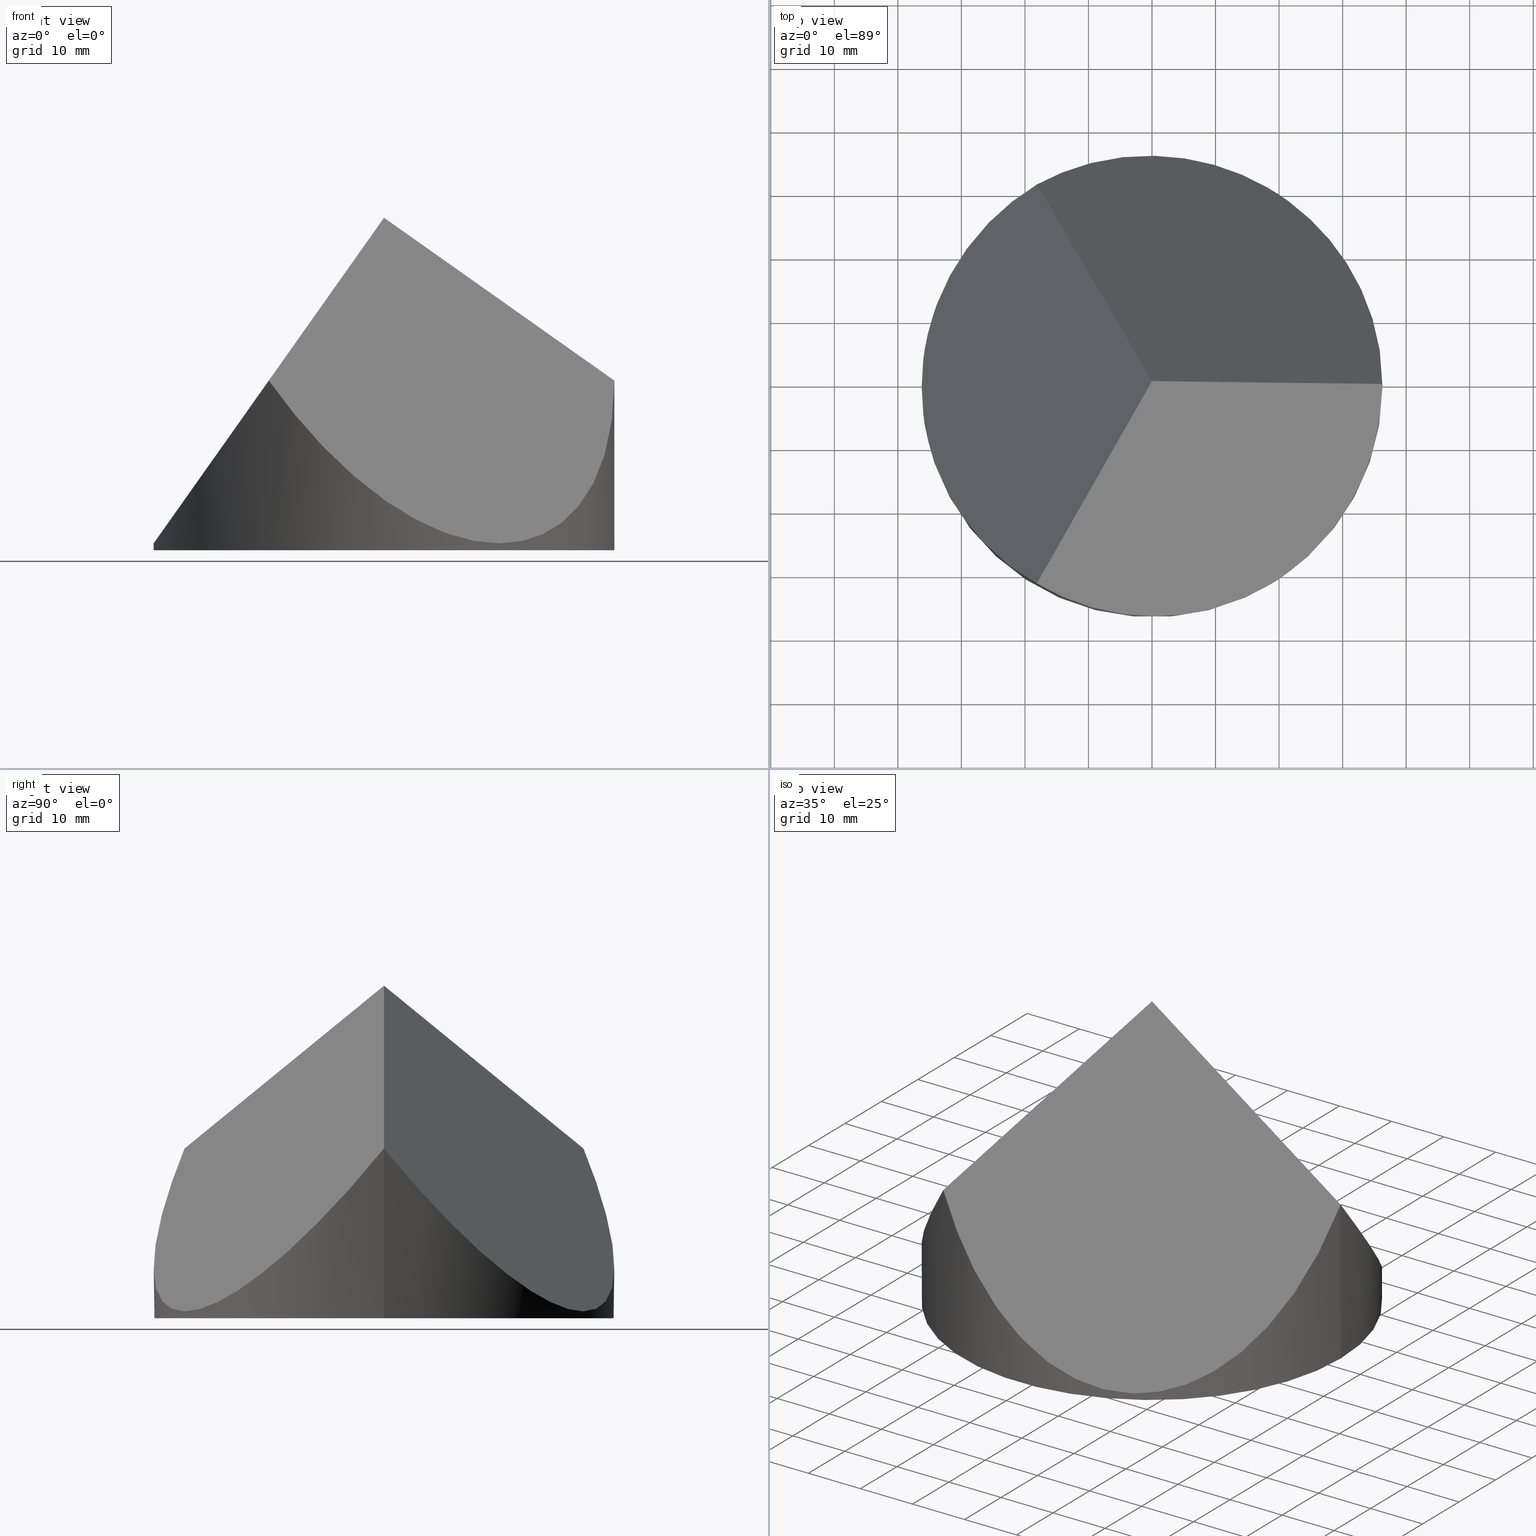
[diagram: canonical four-view strip — front | top / right | iso, engineering-drawing reading convention]
A machine part, canonical four-view strip (front | top / right | iso — engineering-drawing reading convention). The complete STEP part file that produces these views, byte-faithful:
ISO-10303-21;
HEADER;
FILE_DESCRIPTION (( 'STEP AP203' ),
    '1' );
FILE_NAME ('371510.STEP',
    '2019-07-25T02:09:57',
    ( '' ),
    ( '' ),
    'SwSTEP 2.0',
    'SolidWorks 2016',
    '' );
FILE_SCHEMA (( 'CONFIG_CONTROL_DESIGN' ));
ENDSEC;

DATA;
#1 = DIRECTION ( 'NONE',  ( 1.000000000000000000, 0.0000000000000000000, 0.0000000000000000000 ) ) ;
#2 = APPROVAL_DATE_TIME ( #173, #115 ) ;
#3 = DATE_TIME_ROLE ( 'classification_date' ) ;
#4 = APPROVAL_PERSON_ORGANIZATION ( #45, #115, #76 ) ;
#5 = VECTOR ( 'NONE', #206, 1000.000000000000100 ) ;
#6 = LOCAL_TIME ( 10, 9, 57.00000000000000000, #14 ) ;
#7 = APPROVAL_DATE_TIME ( #124, #107 ) ;
#8 = EDGE_CURVE ( 'NONE', #159, #16, #199, .T. ) ;
#9 =( BOUNDED_CURVE ( )  B_SPLINE_CURVE ( 3, ( #280, #85, #25, #210 ),
 .UNSPECIFIED., .F., .T. ) 
 B_SPLINE_CURVE_WITH_KNOTS ( ( 4, 4 ),
 ( 5.235987755982986200, 7.330382858376182800 ),
 .UNSPECIFIED. ) 
 CURVE ( )  GEOMETRIC_REPRESENTATION_ITEM ( )  RATIONAL_B_SPLINE_CURVE ( ( 1.000000000000000000, 0.6666666666666663000, 0.6666666666666663000, 1.000000000000000000 ) ) 
 REPRESENTATION_ITEM ( '' )  );
#10 = PERSON_AND_ORGANIZATION ( #226, #18 ) ;
#11 = VECTOR ( 'NONE', #13, 1000.000000000000000 ) ;
#12 = CARTESIAN_POINT ( 'NONE',  ( -29.61578955640706200, -24.75921044359292700, 10.47564734618864600 ) ) ;
#13 = DIRECTION ( 'NONE',  ( -0.0000000000000000000, -0.0000000000000000000, -1.000000000000000000 ) ) ;
#14 = COORDINATED_UNIVERSAL_TIME_OFFSET ( 8, 0, .AHEAD. ) ;
#15 = DIRECTION ( 'NONE',  ( 0.8164400437365592100, 0.0000000000000000000, -0.5774302165486712200 ) ) ;
#16 = VERTEX_POINT ( 'NONE', #83 ) ;
#17 = ADVANCED_FACE ( 'NONE', ( #175 ), #181, .F. ) ;
#18 = ORGANIZATION ( 'δָ��', 'δָ��', '' ) ;
#19 = DIRECTION ( 'NONE',  ( -0.8165531063768112200, -1.225163215160280000E-016, 0.5772703218305786900 ) ) ;
#20 = DIRECTION ( 'NONE',  ( -0.4082200218682779900, 0.7070578185427394100, -0.5774302165486712200 ) ) ;
#21 = CYLINDRICAL_SURFACE ( 'NONE', #180, 36.25000000000000000 ) ;
#22 = APPROVAL ( #98, 'δָ��' ) ;
#23 = CARTESIAN_POINT ( 'NONE',  ( 36.25000000000002100, 3.536864344184175900E-015, 26.72270276368058400 ) ) ;
#24 = EDGE_CURVE ( 'NONE', #66, #159, #298, .T. ) ;
#25 = CARTESIAN_POINT ( 'NONE',  ( 9.062499999999980500, -47.09013133077888100, -11.71824309079885400 ) ) ;
#26 = APPLICATION_PROTOCOL_DEFINITION ( 'international standard', 'config_control_design', 1994, #247 ) ;
#27 = ADVANCED_FACE ( 'NONE', ( #129 ), #136, .T. ) ;
#28 = DIRECTION ( 'NONE',  ( 0.0000000000000000000, 0.0000000000000000000, 1.000000000000000000 ) ) ;
#29 =( BOUNDED_CURVE ( )  B_SPLINE_CURVE ( 3, ( #162, #68, #72, #43 ),
 .UNSPECIFIED., .F., .T. ) 
 B_SPLINE_CURVE_WITH_KNOTS ( ( 4, 4 ),
 ( 5.235987755982986200, 7.330382858376182800 ),
 .UNSPECIFIED. ) 
 CURVE ( )  GEOMETRIC_REPRESENTATION_ITEM ( )  RATIONAL_B_SPLINE_CURVE ( ( 1.000000000000000000, 0.6666666666666663000, 0.6666666666666663000, 1.000000000000000000 ) ) 
 REPRESENTATION_ITEM ( '' )  );
#30 = EDGE_LOOP ( 'NONE', ( #279, #182, #260, #228, #295 ) ) ;
#31 = LOCAL_TIME ( 10, 9, 57.00000000000000000, #164 ) ;
#32 = APPROVAL_STATUS ( 'not_yet_approved' ) ;
#33 = CC_DESIGN_APPROVAL ( #275, ( #248 ) ) ;
#34 = CC_DESIGN_PERSON_AND_ORGANIZATION_ASSIGNMENT ( #148, #116, ( #248 ) ) ;
#35 = ORIENTED_EDGE ( 'NONE', *, *, #121, .F. ) ;
#36 = APPROVAL_PERSON_ORGANIZATION ( #197, #296, #73 ) ;
#37 = EDGE_CURVE ( 'NONE', #123, #79, #255, .T. ) ;
#38 = DIRECTION ( 'NONE',  ( -0.0000000000000000000, -0.0000000000000000000, -1.000000000000000000 ) ) ;
#39 = EDGE_LOOP ( 'NONE', ( #110, #99 ) ) ;
#40 = PERSON_AND_ORGANIZATION ( #226, #18 ) ;
#41 = COORDINATED_UNIVERSAL_TIME_OFFSET ( 8, 0, .AHEAD. ) ;
#42 = PRODUCT_RELATED_PRODUCT_CATEGORY ( 'detail', '', ( #198 ) ) ;
#43 = CARTESIAN_POINT ( 'NONE',  ( -18.12500000000005000, 31.39342088718588600, 26.72270276368042400 ) ) ;
#44 = ORIENTED_EDGE ( 'NONE', *, *, #60, .F. ) ;
#45 = PERSON_AND_ORGANIZATION ( #226, #18 ) ;
#46 = CARTESIAN_POINT ( 'NONE',  ( 53.69357503463527300, -30.99999999999985400, 52.35000000000000100 ) ) ;
#47 = CARTESIAN_POINT ( 'NONE',  ( -29.61578955640706900, 24.75921044359291300, 10.47564734618863500 ) ) ;
#48 = CC_DESIGN_PERSON_AND_ORGANIZATION_ASSIGNMENT ( #178, #268, ( #204 ) ) ;
#49 = APPROVAL_STATUS ( 'not_yet_approved' ) ;
#50 = ORIENTED_EDGE ( 'NONE', *, *, #202, .T. ) ;
#51 = DIRECTION ( 'NONE',  ( 1.000000000000000000, 0.0000000000000000000, 0.0000000000000000000 ) ) ;
#52 = APPLICATION_PROTOCOL_DEFINITION ( 'international standard', 'config_control_design', 1994, #245 ) ;
#53 = ORIENTED_EDGE ( 'NONE', *, *, #8, .F. ) ;
#54 = PRODUCT_DEFINITION_SHAPE ( 'NONE', 'NONE',  #266 ) ;
#55 = SHAPE_DEFINITION_REPRESENTATION ( #291, #262 ) ;
#56 = CC_DESIGN_PERSON_AND_ORGANIZATION_ASSIGNMENT ( #287, #163, ( #93 ) ) ;
#57 = PERSON_AND_ORGANIZATION ( #226, #18 ) ;
#58 = CC_DESIGN_APPROVAL ( #296, ( #266 ) ) ;
#59 = COORDINATED_UNIVERSAL_TIME_OFFSET ( 8, 0, .AHEAD. ) ;
#60 = EDGE_CURVE ( 'NONE', #66, #79, #250, .T. ) ;
#61 = CC_DESIGN_SECURITY_CLASSIFICATION ( #248, ( #155 ) ) ;
#62 = CARTESIAN_POINT ( 'NONE',  ( -11.40424666751465600, -19.75273465018338500, 36.22530929077493800 ) ) ;
#63 = LINE ( 'NONE', #312, #281 ) ;
#64 = CC_DESIGN_PERSON_AND_ORGANIZATION_ASSIGNMENT ( #10, #265, ( #93 ) ) ;
#65 = PLANE ( 'NONE',  #231 ) ;
#66 = VERTEX_POINT ( 'NONE', #301 ) ;
#67 = AXIS2_PLACEMENT_3D ( 'NONE', #237, #20, #112 ) ;
#68 = CARTESIAN_POINT ( 'NONE',  ( 36.25000000000000700, 31.39342088718594000, -11.71824309079878500 ) ) ;
#69 =( LENGTH_UNIT ( ) NAMED_UNIT ( * ) SI_UNIT ( .MILLI., .METRE. ) );
#70 = SECURITY_CLASSIFICATION ( '', '', #214 ) ;
#71 = CC_DESIGN_DATE_AND_TIME_ASSIGNMENT ( #156, #270, ( #111 ) ) ;
#72 = CARTESIAN_POINT ( 'NONE',  ( 9.062499999999966200, 47.09013133077888100, -11.71824309079887200 ) ) ;
#73 = APPROVAL_ROLE ( '' ) ;
#74 = APPLICATION_PROTOCOL_DEFINITION ( 'international standard', 'config_control_design', 1994, #118 ) ;
#75 = PERSON_AND_ORGANIZATION_ROLE ( 'creator' ) ;
#76 = APPROVAL_ROLE ( '' ) ;
#77 = ORIENTED_EDGE ( 'NONE', *, *, #240, .T. ) ;
#78 = EDGE_CURVE ( 'NONE', #16, #305, #80, .T. ) ;
#79 = VERTEX_POINT ( 'NONE', #82 ) ;
#80 = CIRCLE ( 'NONE', #132, 36.25000000000000000 ) ;
#81 = CC_DESIGN_PERSON_AND_ORGANIZATION_ASSIGNMENT ( #196, #137, ( #70 ) ) ;
#82 = CARTESIAN_POINT ( 'NONE',  ( -3.469446951953614200E-015, -4.420505172018915700E-015, 52.35000000000000100 ) ) ;
#83 = CARTESIAN_POINT ( 'NONE',  ( -36.25000000000000000, 0.0000000000000000000, 0.0000000000000000000 ) ) ;
#84 = APPROVAL_DATE_TIME ( #215, #22 ) ;
#85 = CARTESIAN_POINT ( 'NONE',  ( 36.25000000000001400, -31.39342088718592200, -11.71824309079876700 ) ) ;
#86 =( NAMED_UNIT ( * ) SI_UNIT ( $, .STERADIAN. ) SOLID_ANGLE_UNIT ( ) );
#87 = EDGE_CURVE ( 'NONE', #103, #123, #29, .T. ) ;
#88 =( NAMED_UNIT ( * ) PLANE_ANGLE_UNIT ( ) SI_UNIT ( $, .RADIAN. ) );
#89 = CALENDAR_DATE ( 2019, 25, 7 ) ;
#90 = PERSON_AND_ORGANIZATION_ROLE ( 'creator' ) ;
#91 = APPROVAL_STATUS ( 'not_yet_approved' ) ;
#92 = ADVANCED_FACE ( 'NONE', ( #125 ), #21, .T. ) ;
#93 = PRODUCT_DEFINITION_FORMATION_WITH_SPECIFIED_SOURCE ( '�κ�', '', #204, .NOT_KNOWN. ) ;
#94 = APPROVAL_STATUS ( 'not_yet_approved' ) ;
#95 = EDGE_LOOP ( 'NONE', ( #234, #286, #171 ) ) ;
#96 = MECHANICAL_CONTEXT ( 'NONE', #118, 'mechanical' ) ;
#97 = CALENDAR_DATE ( 2019, 25, 7 ) ;
#98 = APPROVAL_STATUS ( 'not_yet_approved' ) ;
#99 = ORIENTED_EDGE ( 'NONE', *, *, #299, .F. ) ;
#100 = CC_DESIGN_DATE_AND_TIME_ASSIGNMENT ( #168, #166, ( #70 ) ) ;
#101 = COORDINATED_UNIVERSAL_TIME_OFFSET ( 8, 0, .AHEAD. ) ;
#102 = CC_DESIGN_PERSON_AND_ORGANIZATION_ASSIGNMENT ( #104, #141, ( #155 ) ) ;
#103 = VERTEX_POINT ( 'NONE', #23 ) ;
#104 = PERSON_AND_ORGANIZATION ( #226, #18 ) ;
#105 = LOCAL_TIME ( 10, 9, 57.00000000000000000, #59 ) ;
#106 = AXIS2_PLACEMENT_3D ( 'NONE', #176, #38, #133 ) ;
#107 = APPROVAL ( #49, 'δָ��' ) ;
#108 = LOCAL_TIME ( 10, 9, 57.00000000000000000, #244 ) ;
#109 = CARTESIAN_POINT ( 'NONE',  ( -18.12500000000005000, 31.39342088718588600, 26.72270276368042400 ) ) ;
#110 = ORIENTED_EDGE ( 'NONE', *, *, #78, .F. ) ;
#111 = PRODUCT_DEFINITION ( 'δ֪', '', #155, #150 ) ;
#112 = DIRECTION ( 'NONE',  ( 0.0000000000000000000, 0.6325343505460012700, 0.7745323075116674600 ) ) ;
#113 = CALENDAR_DATE ( 2019, 25, 7 ) ;
#114 = DIRECTION ( 'NONE',  ( 0.0000000000000000000, -0.6325343505460011600, 0.7745323075116675700 ) ) ;
#115 = APPROVAL ( #91, 'δָ��' ) ;
#116 = PERSON_AND_ORGANIZATION_ROLE ( 'classification_officer' ) ;
#117 = DIRECTION ( 'NONE',  ( -0.0000000000000000000, -0.0000000000000000000, -1.000000000000000000 ) ) ;
#118 = APPLICATION_CONTEXT ( 'configuration controlled 3d designs of mechanical parts and assemblies' ) ;
#119 = CALENDAR_DATE ( 2019, 25, 7 ) ;
#120 = APPROVAL_ROLE ( '' ) ;
#121 = EDGE_CURVE ( 'NONE', #103, #66, #9, .T. ) ;
#122 = SECURITY_CLASSIFICATION_LEVEL ( 'unclassified' ) ;
#123 = VERTEX_POINT ( 'NONE', #239 ) ;
#124 = DATE_AND_TIME ( #293, #108 ) ;
#125 = FACE_OUTER_BOUND ( 'NONE', #30, .T. ) ;
#126 = LOCAL_TIME ( 10, 9, 57.00000000000000000, #101 ) ;
#127 = COORDINATED_UNIVERSAL_TIME_OFFSET ( 8, 0, .AHEAD. ) ;
#128 = CARTESIAN_POINT ( 'NONE',  ( -36.25000000000000000, 0.0000000000000000000, 52.35000000000000100 ) ) ;
#129 = FACE_OUTER_BOUND ( 'NONE', #217, .T. ) ;
#130 = PERSON_AND_ORGANIZATION ( #226, #18 ) ;
#131 = DIRECTION ( 'NONE',  ( 0.0000000000000000000, 0.0000000000000000000, 1.000000000000000000 ) ) ;
#132 = AXIS2_PLACEMENT_3D ( 'NONE', #177, #131, #154 ) ;
#133 = DIRECTION ( 'NONE',  ( -1.000000000000000000, 0.0000000000000000000, 0.0000000000000000000 ) ) ;
#134 = PERSON_AND_ORGANIZATION ( #226, #18 ) ;
#135 = DIRECTION ( 'NONE',  ( -1.000000000000000000, 0.0000000000000000000, 0.0000000000000000000 ) ) ;
#136 = CYLINDRICAL_SURFACE ( 'NONE', #106, 36.25000000000000000 ) ;
#137 = PERSON_AND_ORGANIZATION_ROLE ( 'classification_officer' ) ;
#138 = APPROVAL_PERSON_ORGANIZATION ( #203, #107, #140 ) ;
#139 = CARTESIAN_POINT ( 'NONE',  ( -36.25000000000000000, 0.0000000000000000000, 1.095405527360988800 ) ) ;
#140 = APPROVAL_ROLE ( '' ) ;
#141 = PERSON_AND_ORGANIZATION_ROLE ( 'design_supplier' ) ;
#142 = ORIENTED_EDGE ( 'NONE', *, *, #87, .F. ) ;
#143 = APPROVAL_DATE_TIME ( #230, #296 ) ;
#144 = FACE_OUTER_BOUND ( 'NONE', #39, .T. ) ;
#145 = CC_DESIGN_APPROVAL ( #115, ( #70 ) ) ;
#146 = APPROVAL_DATE_TIME ( #229, #275 ) ;
#147 = ORIENTED_EDGE ( 'NONE', *, *, #221, .T. ) ;
#148 = PERSON_AND_ORGANIZATION ( #226, #18 ) ;
#149 = CIRCLE ( 'NONE', #165, 36.25000000000000000 ) ;
#150 = DESIGN_CONTEXT ( 'detailed design', #247, 'design' ) ;
#151 = DIRECTION ( 'NONE',  ( -0.5774302165486712200, 0.0000000000000000000, -0.8164400437365592100 ) ) ;
#152 = CARTESIAN_POINT ( 'NONE',  ( 11.40424666751465900, -19.75273465018337800, 68.47469070922507200 ) ) ;
#153 = CC_DESIGN_DATE_AND_TIME_ASSIGNMENT ( #271, #285, ( #266 ) ) ;
#154 = DIRECTION ( 'NONE',  ( 1.000000000000000000, 0.0000000000000000000, 0.0000000000000000000 ) ) ;
#155 = PRODUCT_DEFINITION_FORMATION_WITH_SPECIFIED_SOURCE ( '�κ�', '', #198, .NOT_KNOWN. ) ;
#156 = DATE_AND_TIME ( #119, #190 ) ;
#157 = PLANE ( 'NONE',  #67 ) ;
#158 = CARTESIAN_POINT ( 'NONE',  ( 36.25000000000000000, 4.439344646909153900E-015, 0.0000000000000000000 ) ) ;
#159 = VERTEX_POINT ( 'NONE', #139 ) ;
#160 = DIRECTION ( 'NONE',  ( 0.0000000000000000000, 0.0000000000000000000, 1.000000000000000000 ) ) ;
#161 = MANIFOLD_SOLID_BREP ( '�г�-����3', #242 ) ;
#162 = CARTESIAN_POINT ( 'NONE',  ( 36.25000000000002100, 3.536864344184175900E-015, 26.72270276368058400 ) ) ;
#163 = PERSON_AND_ORGANIZATION_ROLE ( 'creator' ) ;
#164 = COORDINATED_UNIVERSAL_TIME_OFFSET ( 8, 0, .AHEAD. ) ;
#165 = AXIS2_PLACEMENT_3D ( 'NONE', #233, #307, #263 ) ;
#166 = DATE_TIME_ROLE ( 'classification_date' ) ;
#167 = EDGE_LOOP ( 'NONE', ( #224, #300, #222, #276 ) ) ;
#168 = DATE_AND_TIME ( #194, #257 ) ;
#169 = ORIENTED_EDGE ( 'NONE', *, *, #299, .T. ) ;
#170 = LOCAL_TIME ( 10, 9, 57.00000000000000000, #246 ) ;
#171 = ORIENTED_EDGE ( 'NONE', *, *, #37, .T. ) ;
#172 = CALENDAR_DATE ( 2019, 25, 7 ) ;
#173 = DATE_AND_TIME ( #254, #292 ) ;
#174 = CC_DESIGN_PERSON_AND_ORGANIZATION_ASSIGNMENT ( #193, #191, ( #266 ) ) ;
#175 = FACE_OUTER_BOUND ( 'NONE', #167, .T. ) ;
#176 = CARTESIAN_POINT ( 'NONE',  ( 0.0000000000000000000, 0.0000000000000000000, 52.35000000000000100 ) ) ;
#177 = CARTESIAN_POINT ( 'NONE',  ( 0.0000000000000000000, 0.0000000000000000000, 0.0000000000000000000 ) ) ;
#178 = PERSON_AND_ORGANIZATION ( #226, #18 ) ;
#179 = PERSON_AND_ORGANIZATION ( #226, #18 ) ;
#180 = AXIS2_PLACEMENT_3D ( 'NONE', #208, #232, #135 ) ;
#181 = PLANE ( 'NONE',  #249 ) ;
#182 = ORIENTED_EDGE ( 'NONE', *, *, #121, .T. ) ;
#183 = APPROVAL_PERSON_ORGANIZATION ( #134, #275, #213 ) ;
#184 = PLANE ( 'NONE',  #252 ) ;
#185 = APPROVAL ( #189, 'δָ��' ) ;
#186 = CARTESIAN_POINT ( 'NONE',  ( -36.25000000000000000, 13.26842088718587900, 1.095405527360981500 ) ) ;
#187 = PERSON_AND_ORGANIZATION_ROLE ( 'design_owner' ) ;
#188 = DIRECTION ( 'NONE',  ( 0.0000000000000000000, 0.0000000000000000000, 1.000000000000000000 ) ) ;
#189 = APPROVAL_STATUS ( 'not_yet_approved' ) ;
#190 = LOCAL_TIME ( 10, 9, 57.00000000000000000, #223 ) ;
#191 = PERSON_AND_ORGANIZATION_ROLE ( 'creator' ) ;
#192 = APPROVAL_ROLE ( '' ) ;
#193 = PERSON_AND_ORGANIZATION ( #226, #18 ) ;
#194 = CALENDAR_DATE ( 2019, 25, 7 ) ;
#195 = CC_DESIGN_SECURITY_CLASSIFICATION ( #70, ( #93 ) ) ;
#196 = PERSON_AND_ORGANIZATION ( #226, #18 ) ;
#197 = PERSON_AND_ORGANIZATION ( #226, #18 ) ;
#198 = PRODUCT ( '371510', '371510', '', ( #284 ) ) ;
#199 = LINE ( 'NONE', #128, #11 ) ;
#200 = FACE_OUTER_BOUND ( 'NONE', #95, .T. ) ;
#201 = DATE_AND_TIME ( #172, #269 ) ;
#202 = EDGE_CURVE ( 'NONE', #103, #305, #235, .T. ) ;
#203 = PERSON_AND_ORGANIZATION ( #226, #18 ) ;
#204 = PRODUCT ( '371510', '371510', '', ( #96 ) ) ;
#205 = DIRECTION ( 'NONE',  ( 0.4082765531884057200, 0.7071557336614136000, 0.5772703218305811300 ) ) ;
#206 = DIRECTION ( 'NONE',  ( 0.4082765531884057200, -0.7071557336614134900, 0.5772703218305811300 ) ) ;
#207 = ADVANCED_FACE ( 'NONE', ( #144 ), #65, .F. ) ;
#208 = CARTESIAN_POINT ( 'NONE',  ( 0.0000000000000000000, 0.0000000000000000000, 52.35000000000000100 ) ) ;
#209 = CARTESIAN_POINT ( 'NONE',  ( 0.0000000000000000000, 0.0000000000000000000, 0.0000000000000000000 ) ) ;
#210 = CARTESIAN_POINT ( 'NONE',  ( -18.12500000000004300, -31.39342088718588600, 26.72270276368043100 ) ) ;
#211 = PRODUCT_RELATED_PRODUCT_CATEGORY ( 'detail', '', ( #204 ) ) ;
#212 = APPLICATION_CONTEXT ( 'configuration controlled 3d designs of mechanical parts and assemblies' ) ;
#213 = APPROVAL_ROLE ( '' ) ;
#214 = SECURITY_CLASSIFICATION_LEVEL ( 'unclassified' ) ;
#215 = DATE_AND_TIME ( #97, #170 ) ;
#216 = CC_DESIGN_PERSON_AND_ORGANIZATION_ASSIGNMENT ( #40, #187, ( #198 ) ) ;
#217 = EDGE_LOOP ( 'NONE', ( #142, #50, #169, #53, #147 ) ) ;
#218 = VECTOR ( 'NONE', #117, 1000.000000000000000 ) ;
#219 = CALENDAR_DATE ( 2019, 25, 7 ) ;
#220 = CC_DESIGN_APPROVAL ( #185, ( #111 ) ) ;
#221 = EDGE_CURVE ( 'NONE', #159, #123, #290, .T. ) ;
#222 = ORIENTED_EDGE ( 'NONE', *, *, #37, .F. ) ;
#223 = COORDINATED_UNIVERSAL_TIME_OFFSET ( 8, 0, .AHEAD. ) ;
#224 = ORIENTED_EDGE ( 'NONE', *, *, #24, .F. ) ;
#225 = AXIS2_PLACEMENT_3D ( 'NONE', #209, #188, #51 ) ;
#226 = PERSON ( 'δָ��', 'δָ��', 'δָ��', ('δָ��'), ('δָ��'), ('δָ��') ) ;
#227 = CC_DESIGN_PERSON_AND_ORGANIZATION_ASSIGNMENT ( #130, #75, ( #111 ) ) ;
#228 = ORIENTED_EDGE ( 'NONE', *, *, #8, .T. ) ;
#229 = DATE_AND_TIME ( #219, #105 ) ;
#230 = DATE_AND_TIME ( #302, #6 ) ;
#231 = AXIS2_PLACEMENT_3D ( 'NONE', #261, #160, #283 ) ;
#232 = DIRECTION ( 'NONE',  ( -0.0000000000000000000, -0.0000000000000000000, -1.000000000000000000 ) ) ;
#233 = CARTESIAN_POINT ( 'NONE',  ( 0.0000000000000000000, 0.0000000000000000000, 0.0000000000000000000 ) ) ;
#234 = ORIENTED_EDGE ( 'NONE', *, *, #240, .F. ) ;
#235 = LINE ( 'NONE', #278, #218 ) ;
#236 = UNCERTAINTY_MEASURE_WITH_UNIT (LENGTH_MEASURE( 1.000000000000000100E-005 ), #69, 'distance_accuracy_value', 'NONE');
#237 = CARTESIAN_POINT ( 'NONE',  ( 46.33235910246752800, 26.74999999999989700, 52.35000000000000100 ) ) ;
#238 = DATE_AND_TIME ( #113, #31 ) ;
#239 = CARTESIAN_POINT ( 'NONE',  ( -18.12500000000005000, 31.39342088718588600, 26.72270276368042400 ) ) ;
#240 = EDGE_CURVE ( 'NONE', #103, #79, #63, .T. ) ;
#241 = ADVANCED_FACE ( 'NONE', ( #200 ), #184, .T. ) ;
#242 = CLOSED_SHELL ( 'NONE', ( #27, #92, #17, #207, #241, #311 ) ) ;
#243 = APPLICATION_PROTOCOL_DEFINITION ( 'international standard', 'config_control_design', 1994, #212 ) ;
#244 = COORDINATED_UNIVERSAL_TIME_OFFSET ( 8, 0, .AHEAD. ) ;
#245 = APPLICATION_CONTEXT ( 'configuration controlled 3d designs of mechanical parts and assemblies' ) ;
#246 = COORDINATED_UNIVERSAL_TIME_OFFSET ( 8, 0, .AHEAD. ) ;
#247 = APPLICATION_CONTEXT ( 'configuration controlled 3d designs of mechanical parts and assemblies' ) ;
#248 = SECURITY_CLASSIFICATION ( '', '', #122 ) ;
#249 = AXIS2_PLACEMENT_3D ( 'NONE', #297, #15, #151 ) ;
#250 = LINE ( 'NONE', #62, #264 ) ;
#251 = APPROVAL_DATE_TIME ( #238, #185 ) ;
#252 = AXIS2_PLACEMENT_3D ( 'NONE', #46, #282, #114 ) ;
#253 = EDGE_LOOP ( 'NONE', ( #77, #44, #35 ) ) ;
#254 = CALENDAR_DATE ( 2019, 25, 7 ) ;
#255 = LINE ( 'NONE', #152, #5 ) ;
#256 = CARTESIAN_POINT ( 'NONE',  ( -18.12500000000004300, -31.39342088718588600, 26.72270276368043100 ) ) ;
#257 = LOCAL_TIME ( 10, 9, 57.00000000000000000, #41 ) ;
#258 = CARTESIAN_POINT ( 'NONE',  ( -36.25000000000000700, -13.26842088718588100, 1.095405527360982000 ) ) ;
#259 = CARTESIAN_POINT ( 'NONE',  ( -36.25000000000000000, 0.0000000000000000000, 1.095405527360988800 ) ) ;
#260 = ORIENTED_EDGE ( 'NONE', *, *, #24, .T. ) ;
#261 = CARTESIAN_POINT ( 'NONE',  ( 0.0000000000000000000, 0.0000000000000000000, 0.0000000000000000000 ) ) ;
#262 = ADVANCED_BREP_SHAPE_REPRESENTATION ( '371510', ( #161, #304 ), #309 ) ;
#263 = DIRECTION ( 'NONE',  ( 1.000000000000000000, 0.0000000000000000000, 0.0000000000000000000 ) ) ;
#264 = VECTOR ( 'NONE', #205, 1000.000000000000100 ) ;
#265 = PERSON_AND_ORGANIZATION_ROLE ( 'design_supplier' ) ;
#266 = PRODUCT_DEFINITION ( 'δ֪', '', #93, #308 ) ;
#267 = CARTESIAN_POINT ( 'NONE',  ( 0.0000000000000000000, 0.0000000000000000000, 0.0000000000000000000 ) ) ;
#268 = PERSON_AND_ORGANIZATION_ROLE ( 'design_owner' ) ;
#269 = LOCAL_TIME ( 10, 9, 57.00000000000000000, #272 ) ;
#270 = DATE_TIME_ROLE ( 'creation_date' ) ;
#271 = DATE_AND_TIME ( #89, #126 ) ;
#272 = COORDINATED_UNIVERSAL_TIME_OFFSET ( 8, 0, .AHEAD. ) ;
#273 = CC_DESIGN_PERSON_AND_ORGANIZATION_ASSIGNMENT ( #274, #90, ( #155 ) ) ;
#274 = PERSON_AND_ORGANIZATION ( #226, #18 ) ;
#275 = APPROVAL ( #32, 'δָ��' ) ;
#276 = ORIENTED_EDGE ( 'NONE', *, *, #221, .F. ) ;
#277 = CC_DESIGN_APPROVAL ( #107, ( #93 ) ) ;
#278 = CARTESIAN_POINT ( 'NONE',  ( 36.25000000000000000, 4.439344646909153900E-015, 52.35000000000000100 ) ) ;
#279 = ORIENTED_EDGE ( 'NONE', *, *, #202, .F. ) ;
#280 = CARTESIAN_POINT ( 'NONE',  ( 36.25000000000002100, 3.536864344184175900E-015, 26.72270276368058400 ) ) ;
#281 = VECTOR ( 'NONE', #19, 1000.000000000000200 ) ;
#282 = DIRECTION ( 'NONE',  ( 0.4082200218682778300, 0.7070578185427396400, 0.5774302165486711000 ) ) ;
#283 = DIRECTION ( 'NONE',  ( 1.000000000000000000, 0.0000000000000000000, -0.0000000000000000000 ) ) ;
#284 = MECHANICAL_CONTEXT ( 'NONE', #245, 'mechanical' ) ;
#285 = DATE_TIME_ROLE ( 'creation_date' ) ;
#286 = ORIENTED_EDGE ( 'NONE', *, *, #87, .T. ) ;
#287 = PERSON_AND_ORGANIZATION ( #226, #18 ) ;
#288 = CC_DESIGN_DATE_AND_TIME_ASSIGNMENT ( #201, #3, ( #248 ) ) ;
#289 = CC_DESIGN_APPROVAL ( #22, ( #155 ) ) ;
#290 =( BOUNDED_CURVE ( )  B_SPLINE_CURVE ( 3, ( #310, #186, #47, #109 ),
 .UNSPECIFIED., .F., .T. ) 
 B_SPLINE_CURVE_WITH_KNOTS ( ( 4, 4 ),
 ( 0.0000000000000000000, 1.047197551196596300 ),
 .UNSPECIFIED. ) 
 CURVE ( )  GEOMETRIC_REPRESENTATION_ITEM ( )  RATIONAL_B_SPLINE_CURVE ( ( 1.000000000000000000, 0.9106836025229593200, 0.9106836025229593200, 1.000000000000000000 ) ) 
 REPRESENTATION_ITEM ( '' )  );
#291 = PRODUCT_DEFINITION_SHAPE ( 'NONE', 'NONE',  #111 ) ;
#292 = LOCAL_TIME ( 10, 9, 57.00000000000000000, #127 ) ;
#293 = CALENDAR_DATE ( 2019, 25, 7 ) ;
#294 = APPROVAL_PERSON_ORGANIZATION ( #179, #185, #120 ) ;
#295 = ORIENTED_EDGE ( 'NONE', *, *, #78, .T. ) ;
#296 = APPROVAL ( #94, 'δָ��' ) ;
#297 = CARTESIAN_POINT ( 'NONE',  ( 0.0000000000000000000, -39.50000000000000000, 52.35000000000000100 ) ) ;
#298 =( BOUNDED_CURVE ( )  B_SPLINE_CURVE ( 3, ( #256, #12, #258, #259 ),
 .UNSPECIFIED., .F., .F. ) 
 B_SPLINE_CURVE_WITH_KNOTS ( ( 4, 4 ),
 ( 5.235987755982989700, 6.283185307179586200 ),
 .UNSPECIFIED. ) 
 CURVE ( )  GEOMETRIC_REPRESENTATION_ITEM ( )  RATIONAL_B_SPLINE_CURVE ( ( 1.000000000000000000, 0.9106836025229592100, 0.9106836025229592100, 1.000000000000000000 ) ) 
 REPRESENTATION_ITEM ( '' )  );
#299 = EDGE_CURVE ( 'NONE', #305, #16, #149, .T. ) ;
#300 = ORIENTED_EDGE ( 'NONE', *, *, #60, .T. ) ;
#301 = CARTESIAN_POINT ( 'NONE',  ( -18.12500000000004300, -31.39342088718588600, 26.72270276368043100 ) ) ;
#302 = CALENDAR_DATE ( 2019, 25, 7 ) ;
#303 = APPROVAL_PERSON_ORGANIZATION ( #57, #22, #192 ) ;
#304 = AXIS2_PLACEMENT_3D ( 'NONE', #267, #28, #1 ) ;
#305 = VERTEX_POINT ( 'NONE', #158 ) ;
#306 = FACE_OUTER_BOUND ( 'NONE', #253, .T. ) ;
#307 = DIRECTION ( 'NONE',  ( 0.0000000000000000000, 0.0000000000000000000, 1.000000000000000000 ) ) ;
#308 = DESIGN_CONTEXT ( 'detailed design', #212, 'design' ) ;
#309 =( GEOMETRIC_REPRESENTATION_CONTEXT ( 3 ) GLOBAL_UNCERTAINTY_ASSIGNED_CONTEXT ( ( #236 ) ) GLOBAL_UNIT_ASSIGNED_CONTEXT ( ( #69, #88, #86 ) ) REPRESENTATION_CONTEXT ( 'NONE', 'WORKASPACE' ) );
#310 = CARTESIAN_POINT ( 'NONE',  ( -36.25000000000000000, 0.0000000000000000000, 1.095405527360988800 ) ) ;
#311 = ADVANCED_FACE ( 'NONE', ( #306 ), #157, .F. ) ;
#312 = CARTESIAN_POINT ( 'NONE',  ( 35.80067308283096800, 3.469446951953614200E-015, 27.04035888678597000 ) ) ;
ENDSEC;
END-ISO-10303-21;
